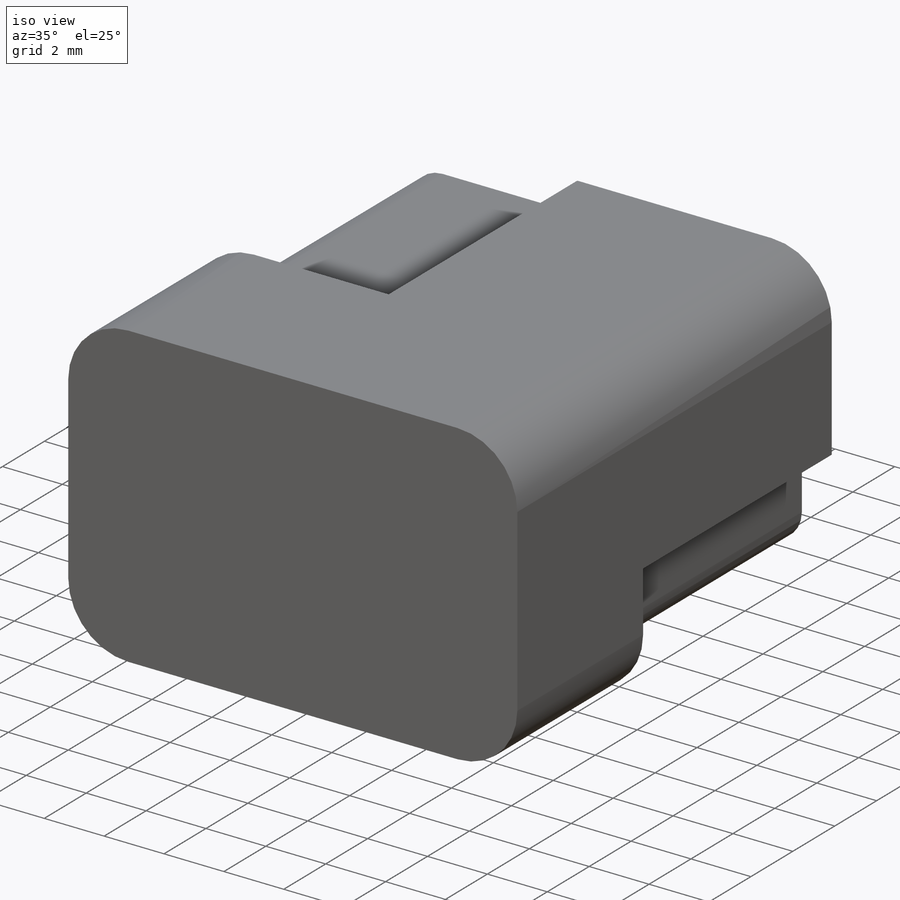
[diagram: iso view]
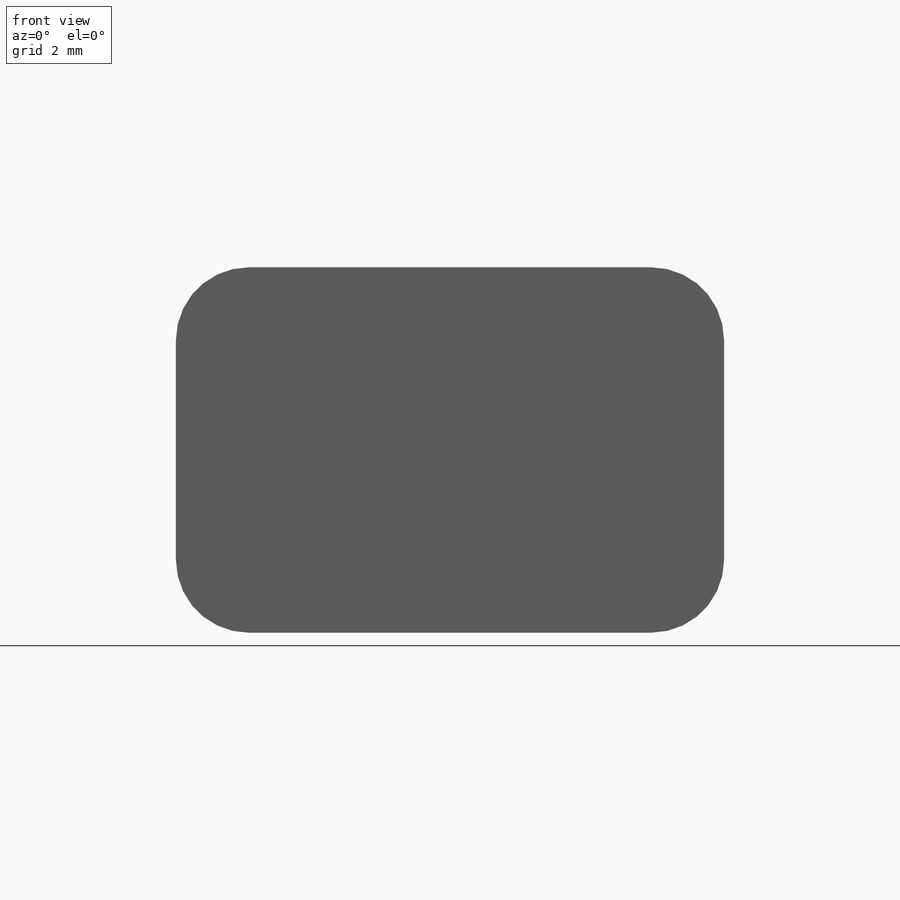
[diagram: front view]
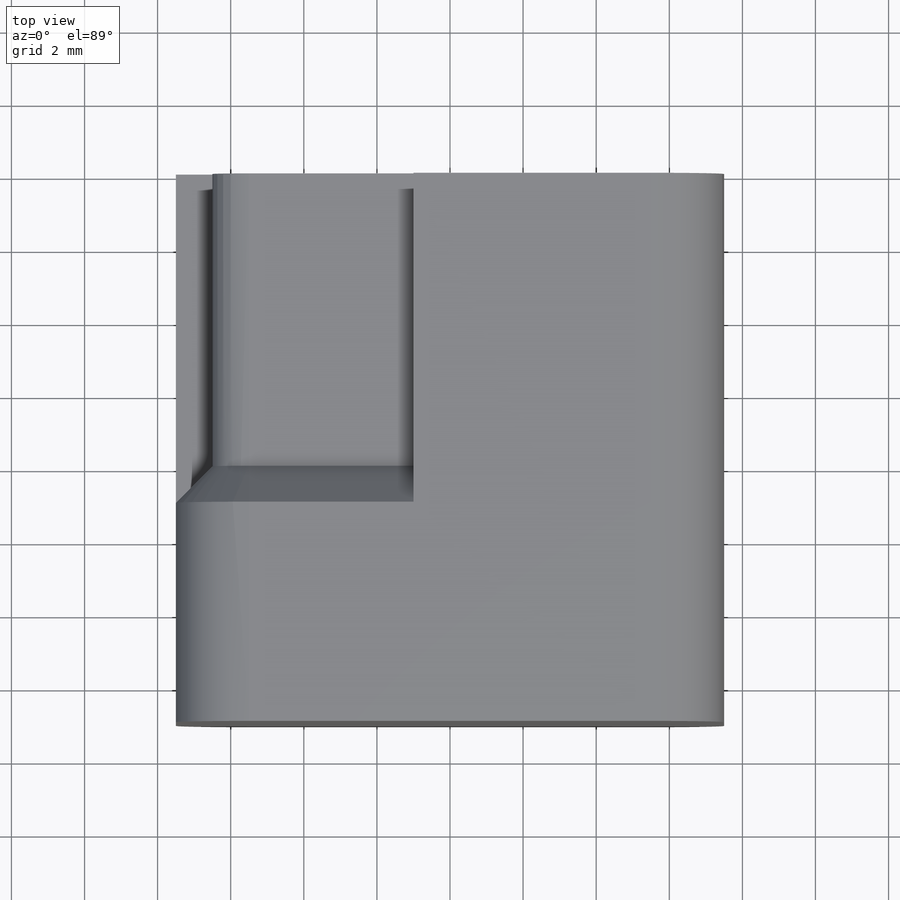
[diagram: top view]
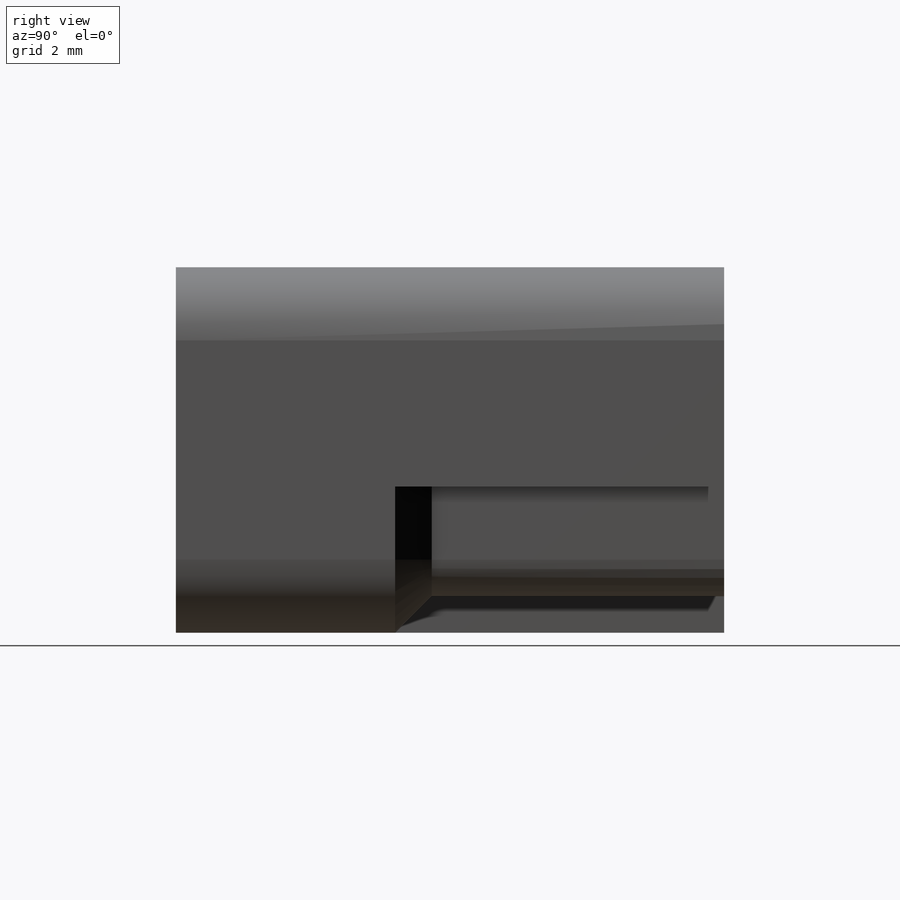
[diagram: right view]
SOLIDWORKS PART (.sldprt)
format: sldprt  version: not decoded by parser v0  size: 244,736 bytes
history: native  units: mm
features: plane x3, sketch x3, material x1, extrude x1, cut_extrude x1, chamfer x1, sweep x1 (+8 scaffold rows collapsed)
feature tree (19):
  scaffold x8  (default folders/planes/origin — collapsed)
  material  "Material <nicht festgelegt>"
  plane  "Ebene vorne"
  plane  "Ebene oben"
  plane  "Ebene rechts"
  sketch  "Skizze1"  dims[D3=2.0mm D1=10.0mm D2=15.0mm]
  extrude  "Aufsatz-Linear austragen1"  Depth=15mm
  sketch  "Skizze2"  dims[c1.D5=1.0mm c1.D6=1.0mm c1.D7=2.0mm c2.D6=2.0mm c2.D8=2.0mm c2.D9=1.0mm c2.D14=1.0mm c2.D15=2.0mm c3.D14=2.0mm c3.D6=1.0mm c3.D1=1.0mm c3.D2=1.0mm c3.D3=1.0mm c3.D4=2.0mm c4.D6=2.0mm c4.D7=1.0mm c4.D10=1.0mm c4.D11=1.0mm c4.D12=4.0mm c4.D13=1.0mm c4.D14=4.5mm c5.D7=1.0mm c5.D8=1.0mm c5.D9=1.0mm c5.D10=1.0mm]
  cut_extrude  "Schnitt-Linear austragen1"  Depth=8mm
  chamfer  "Fase1"  Distance=1mm Angle=45deg
  sketch  "Skizze3"
  sweep  "Schnitt-Austragung1"
decode coverage: 5 of 7 modeling features carry decoded parameters
note: suppression state not decoded; provenance and decode notes live in map.json
